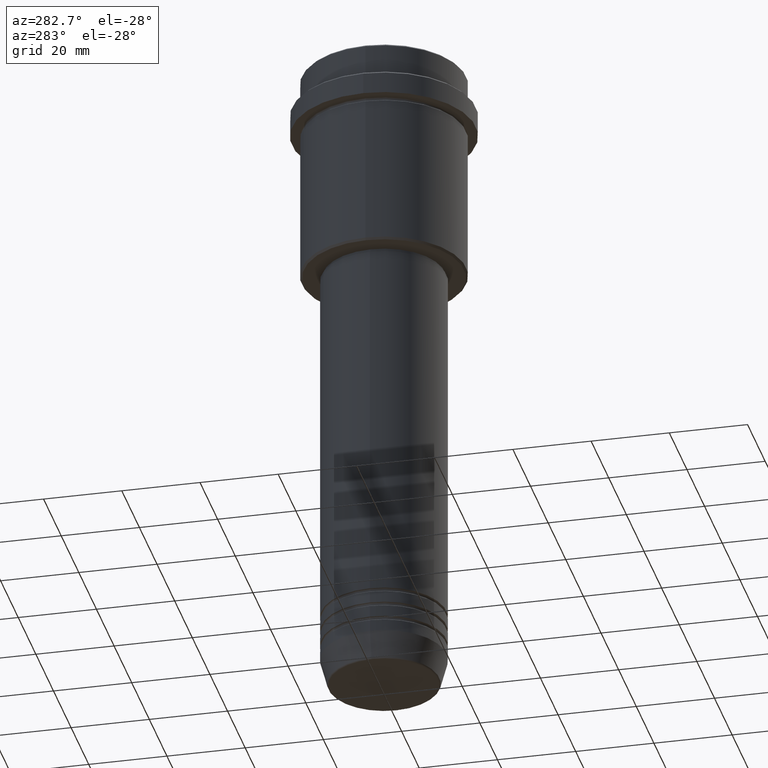
[diagram: clean part render]
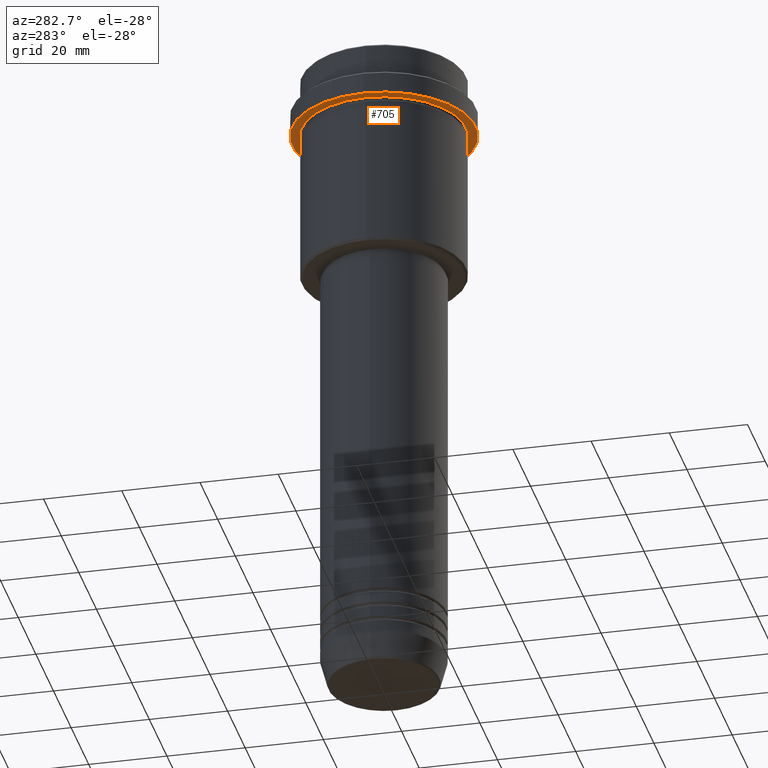
[diagram: same view with one face highlighted and labeled with its STEP entity id]
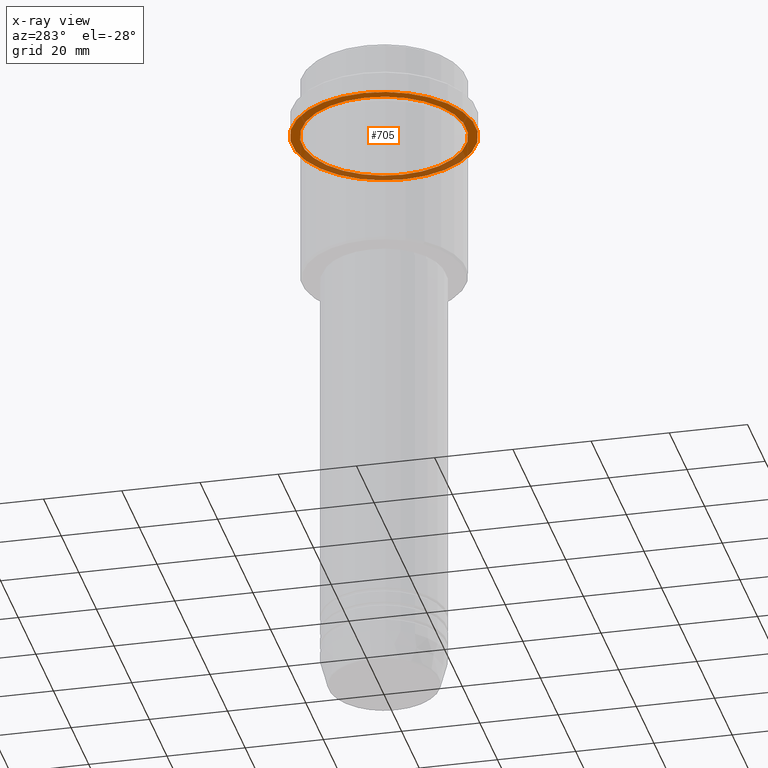
[diagram: x-ray of the same camera — body ghosted, the highlighted face saturated]
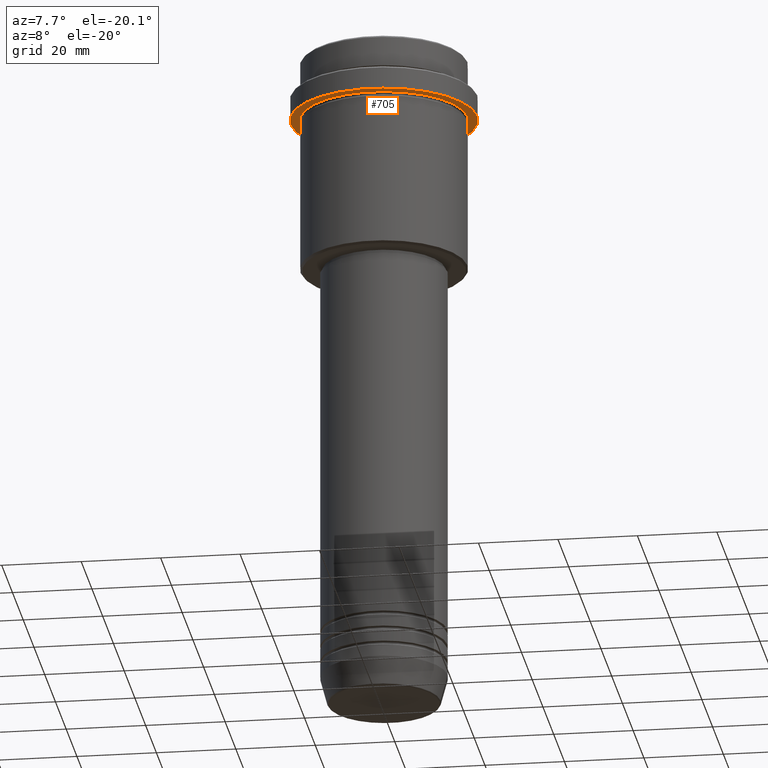
[diagram: same view with one face highlighted and labeled with its STEP entity id]
A machine part, auxiliary view. The second image highlights one B-rep face of the part: STEP entity #705.
The next image is the same camera in x-ray: the body ghosted, the highlighted face saturated — about 36% of this face is hidden behind the body in this view.
A second angle (auxiliary view) of the same face is appended — the face is thin or edge-on in the first view.
In plain terms, the highlighted planar face has unit normal (0, 0, -1).
Its self-contained STEP definition (entity closure, byte-faithful):
#9 = DIRECTION ( 'NONE',  ( -0.000000000000000000, -0.000000000000000000, 1.000000000000000000 ) ) ;
#59 = DIRECTION ( 'NONE',  ( -1.000000000000000000, 0.000000000000000000, 0.000000000000000000 ) ) ;
#68 = EDGE_LOOP ( 'NONE', ( #587, #193 ) ) ;
#89 = EDGE_CURVE ( 'NONE', #404, #1137, #1242, .T. ) ;
#138 = AXIS2_PLACEMENT_3D ( 'NONE', #1343, #1227, #1239 ) ;
#149 = CARTESIAN_POINT ( 'NONE',  ( -23.50000000000000711, 2.877919977996281109E-15, -14.99999999999998757 ) ) ;
#187 = DIRECTION ( 'NONE',  ( 0.000000000000000000, 0.000000000000000000, -1.000000000000000000 ) ) ;
#193 = ORIENTED_EDGE ( 'NONE', *, *, #89, .F. ) ;
#211 = EDGE_CURVE ( 'NONE', #1137, #404, #489, .T. ) ;
#292 = EDGE_CURVE ( 'NONE', #535, #919, #1202, .T. ) ;
#299 = PLANE ( 'NONE',  #484 ) ;
#318 = CARTESIAN_POINT ( 'NONE',  ( 23.50000000000000355, 0.000000000000000000, -14.99999999999998757 ) ) ;
#337 = CARTESIAN_POINT ( 'NONE',  ( 0.000000000000000000, 0.000000000000000000, -14.99999999999998757 ) ) ;
#354 = DIRECTION ( 'NONE',  ( 1.000000000000000000, 0.000000000000000000, 0.000000000000000000 ) ) ;
#404 = VERTEX_POINT ( 'NONE', #149 ) ;
#425 = ORIENTED_EDGE ( 'NONE', *, *, #292, .T. ) ;
#442 = DIRECTION ( 'NONE',  ( 1.000000000000000000, 0.000000000000000000, 0.000000000000000000 ) ) ;
#484 = AXIS2_PLACEMENT_3D ( 'NONE', #987, #187, #1284 ) ;
#489 = CIRCLE ( 'NONE', #811, 23.50000000000000355 ) ;
#535 = VERTEX_POINT ( 'NONE', #1271 ) ;
#558 = AXIS2_PLACEMENT_3D ( 'NONE', #337, #1118, #354 ) ;
#587 = ORIENTED_EDGE ( 'NONE', *, *, #211, .F. ) ;
#623 = CARTESIAN_POINT ( 'NONE',  ( -20.99999999999999289, 0.000000000000000000, -14.99999999999998757 ) ) ;
#678 = AXIS2_PLACEMENT_3D ( 'NONE', #735, #955, #59 ) ;
#693 = ORIENTED_EDGE ( 'NONE', *, *, #769, .T. ) ;
#705 = ADVANCED_FACE ( 'NONE', ( #1094, #1169 ), #299, .T. ) ;
#735 = CARTESIAN_POINT ( 'NONE',  ( 0.000000000000000000, 0.000000000000000000, -14.99999999999998757 ) ) ;
#769 = EDGE_CURVE ( 'NONE', #919, #535, #1147, .T. ) ;
#804 = EDGE_LOOP ( 'NONE', ( #693, #425 ) ) ;
#811 = AXIS2_PLACEMENT_3D ( 'NONE', #985, #9, #442 ) ;
#919 = VERTEX_POINT ( 'NONE', #623 ) ;
#955 = DIRECTION ( 'NONE',  ( -0.000000000000000000, -0.000000000000000000, 1.000000000000000000 ) ) ;
#985 = CARTESIAN_POINT ( 'NONE',  ( 0.000000000000000000, 0.000000000000000000, -14.99999999999998757 ) ) ;
#987 = CARTESIAN_POINT ( 'NONE',  ( 0.000000000000000000, 23.50000000000000355, -14.99999999999998757 ) ) ;
#1094 = FACE_BOUND ( 'NONE', #804, .T. ) ;
#1118 = DIRECTION ( 'NONE',  ( -0.000000000000000000, -0.000000000000000000, 1.000000000000000000 ) ) ;
#1137 = VERTEX_POINT ( 'NONE', #318 ) ;
#1147 = CIRCLE ( 'NONE', #138, 20.99999999999999289 ) ;
#1169 = FACE_OUTER_BOUND ( 'NONE', #68, .T. ) ;
#1202 = CIRCLE ( 'NONE', #678, 20.99999999999999289 ) ;
#1227 = DIRECTION ( 'NONE',  ( -0.000000000000000000, -0.000000000000000000, 1.000000000000000000 ) ) ;
#1239 = DIRECTION ( 'NONE',  ( -1.000000000000000000, 0.000000000000000000, 0.000000000000000000 ) ) ;
#1242 = CIRCLE ( 'NONE', #558, 23.50000000000000355 ) ;
#1271 = CARTESIAN_POINT ( 'NONE',  ( 20.99999999999999289, 2.571758278209440872E-15, -14.99999999999998757 ) ) ;
#1284 = DIRECTION ( 'NONE',  ( -1.000000000000000000, 0.000000000000000000, -0.000000000000000000 ) ) ;
#1343 = CARTESIAN_POINT ( 'NONE',  ( 0.000000000000000000, 0.000000000000000000, -14.99999999999998757 ) ) ;